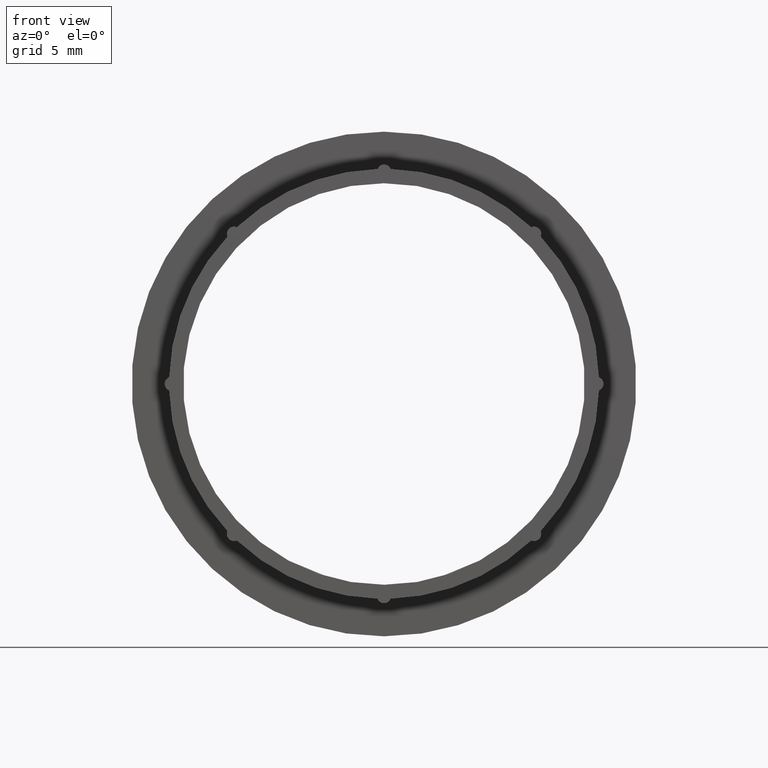
[diagram: clean part render]
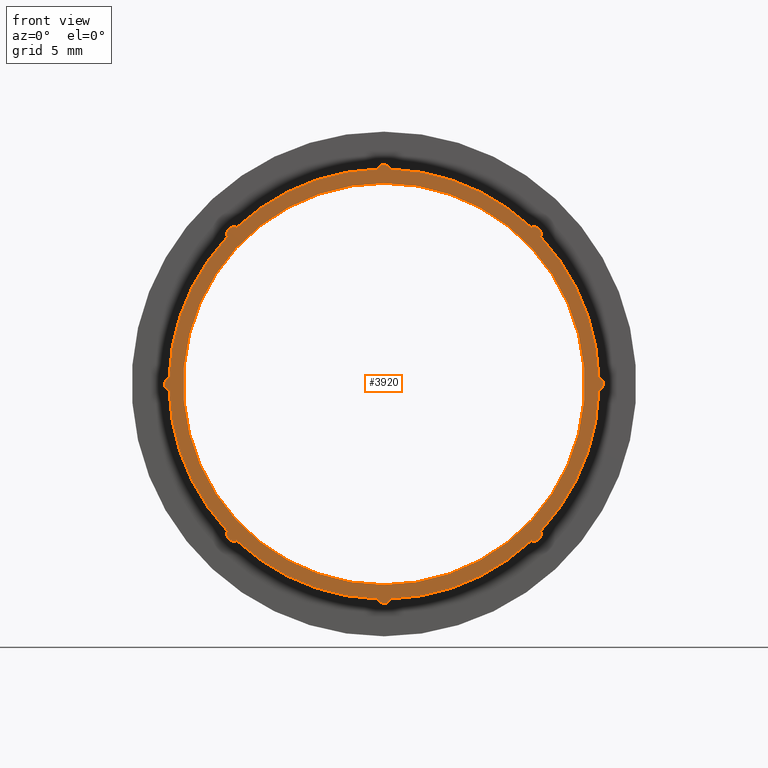
[diagram: same view with one face highlighted and labeled with its STEP entity id]
A machine part, front view. The second image highlights one B-rep face of the part: STEP entity #3920.
In plain terms, the highlighted planar face has unit normal (0, -1, -0).
Its self-contained STEP definition (entity closure, byte-faithful):
#45 = CARTESIAN_POINT ( 'NONE',  ( 1.120551821219828341E-15, -2.168404344971008868E-16, 9.150000000000000355 ) ) ;
#136 = CARTESIAN_POINT ( 'NONE',  ( 6.841258107979906633, 0.000000000000000000, -7.166258107979787795 ) ) ;
#292 = CARTESIAN_POINT ( 'NONE',  ( 0.000000000000000000, -9.653098299161472237E-17, 0.000000000000000000 ) ) ;
#344 = ORIENTED_EDGE ( 'NONE', *, *, #9923, .T. ) ;
#604 = DIRECTION ( 'NONE',  ( 0.000000000000000000, -1.000000000000000000, -0.000000000000000000 ) ) ;
#719 = DIRECTION ( 'NONE',  ( 0.000000000000000000, 0.000000000000000000, -1.000000000000000000 ) ) ;
#755 = AXIS2_PLACEMENT_3D ( 'NONE', #5947, #6041, #7125 ) ;
#785 = DIRECTION ( 'NONE',  ( -0.000000000000000000, -1.000000000000000000, -0.000000000000000000 ) ) ;
#794 = EDGE_CURVE ( 'NONE', #10938, #4193, #3494, .T. ) ;
#848 = ORIENTED_EDGE ( 'NONE', *, *, #8099, .T. ) ;
#910 = CARTESIAN_POINT ( 'NONE',  ( -6.712884921904247015, 1.200763985293244812E-18, -7.139830251852677279 ) ) ;
#977 = CARTESIAN_POINT ( 'NONE',  ( 0.000000000000000000, -9.653098299161472237E-17, 0.000000000000000000 ) ) ;
#1028 = EDGE_CURVE ( 'NONE', #2748, #6283, #10674, .T. ) ;
#1056 = DIRECTION ( 'NONE',  ( 0.7071067811865489050, 0.000000000000000000, -0.7071067811865462405 ) ) ;
#1074 = CARTESIAN_POINT ( 'NONE',  ( 6.712884921904196389, 1.200763985293232679E-18, 7.139830251852722576 ) ) ;
#1206 = DIRECTION ( 'NONE',  ( 0.7071067811865436870, 0.000000000000000000, 0.7071067811865515695 ) ) ;
#1212 = DIRECTION ( 'NONE',  ( 0.000000000000000000, -1.000000000000000000, 0.000000000000000000 ) ) ;
#1265 = CIRCLE ( 'NONE', #8469, 0.3250000000000004552 ) ;
#1313 = VERTEX_POINT ( 'NONE', #13988 ) ;
#1314 = CARTESIAN_POINT ( 'NONE',  ( 9.674999999999998934, 0.000000000000000000, 1.013402458599219377E-13 ) ) ;
#1347 = AXIS2_PLACEMENT_3D ( 'NONE', #13126, #8381, #10646 ) ;
#1358 = VERTEX_POINT ( 'NONE', #3942 ) ;
#1437 = CARTESIAN_POINT ( 'NONE',  ( 9.800000000000000711, -1.566857087443577923E-16, 0.000000000000000000 ) ) ;
#1508 = AXIS2_PLACEMENT_3D ( 'NONE', #5091, #9480, #3857 ) ;
#1563 = DIRECTION ( 'NONE',  ( 0.7071067811865436870, 0.000000000000000000, 0.7071067811865515695 ) ) ;
#1607 = DIRECTION ( 'NONE',  ( 0.000000000000000000, -1.000000000000000000, 0.000000000000000000 ) ) ;
#2027 = VERTEX_POINT ( 'NONE', #910 ) ;
#2107 = CIRCLE ( 'NONE', #12465, 0.3250000000000006217 ) ;
#2127 = CARTESIAN_POINT ( 'NONE',  ( 9.795348837209301607, 1.200763985293232679E-18, 0.3018959380025138528 ) ) ;
#2141 = CARTESIAN_POINT ( 'NONE',  ( 0.000000000000000000, -2.168404344971008868E-16, 0.000000000000000000 ) ) ;
#2334 = CARTESIAN_POINT ( 'NONE',  ( 0.000000000000000000, 0.000000000000000000, 9.674999999999998934 ) ) ;
#2455 = EDGE_CURVE ( 'NONE', #7748, #2027, #9050, .T. ) ;
#2465 = ORIENTED_EDGE ( 'NONE', *, *, #5186, .T. ) ;
#2539 = PLANE ( 'NONE',  #13570 ) ;
#2623 = CIRCLE ( 'NONE', #755, 0.3249999999999998446 ) ;
#2703 = ORIENTED_EDGE ( 'NONE', *, *, #9406, .T. ) ;
#2748 = VERTEX_POINT ( 'NONE', #7291 ) ;
#2761 = DIRECTION ( 'NONE',  ( -0.000000000000000000, -1.000000000000000000, -0.000000000000000000 ) ) ;
#2762 = CIRCLE ( 'NONE', #14464, 0.3250000000000006217 ) ;
#2763 = VERTEX_POINT ( 'NONE', #3125 ) ;
#3009 = DIRECTION ( 'NONE',  ( 0.000000000000000000, 0.000000000000000000, -1.000000000000000000 ) ) ;
#3080 = CARTESIAN_POINT ( 'NONE',  ( 0.000000000000000000, -9.653098299161472237E-17, 0.000000000000000000 ) ) ;
#3083 = DIRECTION ( 'NONE',  ( 0.000000000000000000, -1.000000000000000000, 0.000000000000000000 ) ) ;
#3093 = DIRECTION ( 'NONE',  ( 0.000000000000000000, 0.000000000000000000, -1.000000000000000000 ) ) ;
#3099 = EDGE_CURVE ( 'NONE', #6283, #7748, #11782, .T. ) ;
#3114 = EDGE_LOOP ( 'NONE', ( #8393, #7671, #12529, #4144, #5142, #8023, #7300, #4007, #10759, #4749, #14084, #13167, #2465, #4907, #2703, #848, #10095, #344, #9466 ) ) ;
#3125 = CARTESIAN_POINT ( 'NONE',  ( 0.000000000000000000, 0.000000000000000000, -10.00000000000000000 ) ) ;
#3175 = EDGE_CURVE ( 'NONE', #8117, #2748, #7226, .T. ) ;
#3450 = CIRCLE ( 'NONE', #4026, 0.3250000000000006217 ) ;
#3476 = DIRECTION ( 'NONE',  ( -0.000000000000000000, -1.000000000000000000, 0.000000000000000000 ) ) ;
#3481 = CIRCLE ( 'NONE', #10955, 9.800000000000000711 ) ;
#3492 = DIRECTION ( 'NONE',  ( 0.000000000000000000, 0.000000000000000000, -1.000000000000000000 ) ) ;
#3494 = CIRCLE ( 'NONE', #14482, 0.3250000000000006217 ) ;
#3526 = EDGE_LOOP ( 'NONE', ( #10716, #6589 ) ) ;
#3666 = DIRECTION ( 'NONE',  ( 0.000000000000000000, 0.000000000000000000, -1.000000000000000000 ) ) ;
#3835 = CARTESIAN_POINT ( 'NONE',  ( 9.795348837209306936, 1.200763985293232679E-18, -0.3018959380023086836 ) ) ;
#3857 = DIRECTION ( 'NONE',  ( 0.000000000000000000, 0.000000000000000000, -1.000000000000000000 ) ) ;
#3920 = ADVANCED_FACE ( 'NONE', ( #9666, #10359 ), #2539, .T. ) ;
#3939 = CARTESIAN_POINT ( 'NONE',  ( -9.795348837209306936, 1.200763985293232679E-18, 0.3018959380023771288 ) ) ;
#3942 = CARTESIAN_POINT ( 'NONE',  ( 7.139830251852558263, 1.200763985293232679E-18, 6.712884921904372248 ) ) ;
#4007 = ORIENTED_EDGE ( 'NONE', *, *, #5340, .T. ) ;
#4026 = AXIS2_PLACEMENT_3D ( 'NONE', #9351, #1607, #11581 ) ;
#4144 = ORIENTED_EDGE ( 'NONE', *, *, #3175, .T. ) ;
#4193 = VERTEX_POINT ( 'NONE', #5620 ) ;
#4563 = DIRECTION ( 'NONE',  ( -1.000000000000000000, 0.000000000000000000, -1.047444401652937956E-14 ) ) ;
#4581 = AXIS2_PLACEMENT_3D ( 'NONE', #3080, #10918, #719 ) ;
#4749 = ORIENTED_EDGE ( 'NONE', *, *, #10383, .T. ) ;
#4861 = CARTESIAN_POINT ( 'NONE',  ( -6.712884921904283431, 0.000000000000000000, 7.139830251852645304 ) ) ;
#4895 = DIRECTION ( 'NONE',  ( -0.000000000000000000, -1.000000000000000000, -0.000000000000000000 ) ) ;
#4907 = ORIENTED_EDGE ( 'NONE', *, *, #8705, .T. ) ;
#4963 = VERTEX_POINT ( 'NONE', #14460 ) ;
#5091 = CARTESIAN_POINT ( 'NONE',  ( 0.000000000000000000, -2.168404344971008868E-16, 0.000000000000000000 ) ) ;
#5142 = ORIENTED_EDGE ( 'NONE', *, *, #1028, .T. ) ;
#5186 = EDGE_CURVE ( 'NONE', #9726, #12229, #1265, .T. ) ;
#5340 = EDGE_CURVE ( 'NONE', #2027, #14127, #7367, .T. ) ;
#5433 = CARTESIAN_POINT ( 'NONE',  ( 0.000000000000000000, -9.653098299161472237E-17, 0.000000000000000000 ) ) ;
#5610 = CARTESIAN_POINT ( 'NONE',  ( 6.841258107979906633, 0.000000000000000000, -6.841258107979787617 ) ) ;
#5620 = CARTESIAN_POINT ( 'NONE',  ( -0.3018959380024314743, -9.653098299161472237E-17, 9.795348837209303383 ) ) ;
#5780 = DIRECTION ( 'NONE',  ( -0.000000000000000000, -1.000000000000000000, -0.000000000000000000 ) ) ;
#5801 = DIRECTION ( 'NONE',  ( -0.7071067811865542341, 0.000000000000000000, 0.7071067811865409114 ) ) ;
#5826 = DIRECTION ( 'NONE',  ( 0.000000000000000000, -1.000000000000000000, -0.000000000000000000 ) ) ;
#5840 = EDGE_CURVE ( 'NONE', #9444, #4963, #6316, .T. ) ;
#5912 = CIRCLE ( 'NONE', #8038, 9.800000000000000711 ) ;
#5947 = CARTESIAN_POINT ( 'NONE',  ( 6.841258107979763636, 0.000000000000000000, 6.841258107979929726 ) ) ;
#6000 = AXIS2_PLACEMENT_3D ( 'NONE', #292, #11509, #6913 ) ;
#6041 = DIRECTION ( 'NONE',  ( 0.000000000000000000, -1.000000000000000000, 0.000000000000000000 ) ) ;
#6061 = CARTESIAN_POINT ( 'NONE',  ( 0.3018959380024112682, 1.200763985293232679E-18, -9.795348837209303383 ) ) ;
#6101 = AXIS2_PLACEMENT_3D ( 'NONE', #2141, #12018, #3093 ) ;
#6197 = CARTESIAN_POINT ( 'NONE',  ( 6.841258107979906633, 0.000000000000000000, -6.841258107979787617 ) ) ;
#6257 = CIRCLE ( 'NONE', #4581, 9.800000000000000711 ) ;
#6283 = VERTEX_POINT ( 'NONE', #10104 ) ;
#6295 = DIRECTION ( 'NONE',  ( -0.7071067811865542341, 0.000000000000000000, 0.7071067811865409114 ) ) ;
#6316 = CIRCLE ( 'NONE', #7269, 0.3250000000000003997 ) ;
#6396 = CIRCLE ( 'NONE', #6101, 9.150000000000000355 ) ;
#6576 = DIRECTION ( 'NONE',  ( 0.000000000000000000, 0.000000000000000000, -1.000000000000000000 ) ) ;
#6585 = CARTESIAN_POINT ( 'NONE',  ( -6.841258107979859560, 0.000000000000000000, 6.841258107979835579 ) ) ;
#6589 = ORIENTED_EDGE ( 'NONE', *, *, #11335, .F. ) ;
#6682 = AXIS2_PLACEMENT_3D ( 'NONE', #11273, #3476, #1206 ) ;
#6913 = DIRECTION ( 'NONE',  ( 0.000000000000000000, 0.000000000000000000, -1.000000000000000000 ) ) ;
#7051 = EDGE_CURVE ( 'NONE', #1358, #11943, #2623, .T. ) ;
#7125 = DIRECTION ( 'NONE',  ( -0.7071067811865394681, 0.000000000000000000, -0.7071067811865555663 ) ) ;
#7226 = CIRCLE ( 'NONE', #1347, 0.3250000000000006217 ) ;
#7269 = AXIS2_PLACEMENT_3D ( 'NONE', #6585, #3083, #1056 ) ;
#7291 = CARTESIAN_POINT ( 'NONE',  ( -9.795348837209301607, 1.200763985293232679E-18, -0.3018959380024454631 ) ) ;
#7300 = ORIENTED_EDGE ( 'NONE', *, *, #2455, .T. ) ;
#7367 = CIRCLE ( 'NONE', #12059, 9.800000000000000711 ) ;
#7671 = ORIENTED_EDGE ( 'NONE', *, *, #5840, .T. ) ;
#7748 = VERTEX_POINT ( 'NONE', #8207 ) ;
#8023 = ORIENTED_EDGE ( 'NONE', *, *, #3099, .T. ) ;
#8038 = AXIS2_PLACEMENT_3D ( 'NONE', #11746, #10504, #12782 ) ;
#8099 = EDGE_CURVE ( 'NONE', #8412, #1358, #12273, .T. ) ;
#8117 = VERTEX_POINT ( 'NONE', #3939 ) ;
#8207 = CARTESIAN_POINT ( 'NONE',  ( -6.841258107979810710, 0.000000000000000000, -7.166258107979882830 ) ) ;
#8381 = DIRECTION ( 'NONE',  ( -0.000000000000000000, -1.000000000000000000, 0.000000000000000000 ) ) ;
#8393 = ORIENTED_EDGE ( 'NONE', *, *, #10951, .T. ) ;
#8412 = VERTEX_POINT ( 'NONE', #2127 ) ;
#8469 = AXIS2_PLACEMENT_3D ( 'NONE', #6197, #604, #6295 ) ;
#8596 = EDGE_CURVE ( 'NONE', #14127, #2763, #2107, .T. ) ;
#8705 = EDGE_CURVE ( 'NONE', #12229, #10397, #3481, .T. ) ;
#8777 = AXIS2_PLACEMENT_3D ( 'NONE', #9522, #2761, #10741 ) ;
#8941 = CARTESIAN_POINT ( 'NONE',  ( 0.000000000000000000, 0.000000000000000000, -9.674999999999998934 ) ) ;
#8983 = DIRECTION ( 'NONE',  ( 0.000000000000000000, 0.000000000000000000, 1.000000000000000000 ) ) ;
#9050 = CIRCLE ( 'NONE', #6682, 0.3250000000000003997 ) ;
#9061 = EDGE_CURVE ( 'NONE', #10177, #9726, #9241, .T. ) ;
#9241 = CIRCLE ( 'NONE', #11150, 0.3250000000000004552 ) ;
#9319 = DIRECTION ( 'NONE',  ( -0.000000000000000000, -1.000000000000000000, 0.000000000000000000 ) ) ;
#9351 = CARTESIAN_POINT ( 'NONE',  ( 0.000000000000000000, 0.000000000000000000, -9.674999999999998934 ) ) ;
#9366 = CARTESIAN_POINT ( 'NONE',  ( 0.000000000000000000, -9.653098299161472237E-17, 0.000000000000000000 ) ) ;
#9406 = EDGE_CURVE ( 'NONE', #10397, #8412, #2762, .T. ) ;
#9444 = VERTEX_POINT ( 'NONE', #4861 ) ;
#9466 = ORIENTED_EDGE ( 'NONE', *, *, #794, .T. ) ;
#9480 = DIRECTION ( 'NONE',  ( -0.000000000000000000, -1.000000000000000000, -0.000000000000000000 ) ) ;
#9522 = CARTESIAN_POINT ( 'NONE',  ( 0.000000000000000000, -9.653098299161472237E-17, 0.000000000000000000 ) ) ;
#9666 = FACE_OUTER_BOUND ( 'NONE', #3114, .T. ) ;
#9726 = VERTEX_POINT ( 'NONE', #136 ) ;
#9871 = AXIS2_PLACEMENT_3D ( 'NONE', #10399, #9319, #1563 ) ;
#9923 = EDGE_CURVE ( 'NONE', #11943, #10938, #5912, .T. ) ;
#9937 = CIRCLE ( 'NONE', #1508, 9.150000000000000355 ) ;
#10095 = ORIENTED_EDGE ( 'NONE', *, *, #7051, .T. ) ;
#10104 = CARTESIAN_POINT ( 'NONE',  ( -7.139830251852605336, 1.200763985293232679E-18, -6.712884921904320734 ) ) ;
#10177 = VERTEX_POINT ( 'NONE', #10248 ) ;
#10198 = DIRECTION ( 'NONE',  ( 0.000000000000000000, -1.000000000000000000, 0.000000000000000000 ) ) ;
#10248 = CARTESIAN_POINT ( 'NONE',  ( 6.712884921904346491, 1.200763985293244812E-18, -7.139830251852584020 ) ) ;
#10359 = FACE_BOUND ( 'NONE', #3526, .T. ) ;
#10374 = CARTESIAN_POINT ( 'NONE',  ( 0.000000000000000000, -9.653098299161472237E-17, 0.000000000000000000 ) ) ;
#10383 = EDGE_CURVE ( 'NONE', #2763, #14508, #3450, .T. ) ;
#10397 = VERTEX_POINT ( 'NONE', #3835 ) ;
#10399 = CARTESIAN_POINT ( 'NONE',  ( -6.841258107979810710, 0.000000000000000000, -6.841258107979882652 ) ) ;
#10504 = DIRECTION ( 'NONE',  ( -0.000000000000000000, -1.000000000000000000, -0.000000000000000000 ) ) ;
#10646 = DIRECTION ( 'NONE',  ( 1.000000000000000000, 0.000000000000000000, 3.491481338843133355E-15 ) ) ;
#10674 = CIRCLE ( 'NONE', #6000, 9.800000000000000711 ) ;
#10716 = ORIENTED_EDGE ( 'NONE', *, *, #13453, .F. ) ;
#10741 = DIRECTION ( 'NONE',  ( 0.000000000000000000, 0.000000000000000000, -1.000000000000000000 ) ) ;
#10759 = ORIENTED_EDGE ( 'NONE', *, *, #8596, .T. ) ;
#10918 = DIRECTION ( 'NONE',  ( -0.000000000000000000, -1.000000000000000000, -0.000000000000000000 ) ) ;
#10938 = VERTEX_POINT ( 'NONE', #13151 ) ;
#10951 = EDGE_CURVE ( 'NONE', #4193, #9444, #6257, .T. ) ;
#10955 = AXIS2_PLACEMENT_3D ( 'NONE', #9366, #4895, #13878 ) ;
#11063 = VERTEX_POINT ( 'NONE', #45 ) ;
#11150 = AXIS2_PLACEMENT_3D ( 'NONE', #5610, #13667, #5801 ) ;
#11211 = DIRECTION ( 'NONE',  ( 0.000000000000000000, -1.000000000000000000, 0.000000000000000000 ) ) ;
#11273 = CARTESIAN_POINT ( 'NONE',  ( -6.841258107979810710, 0.000000000000000000, -6.841258107979882652 ) ) ;
#11335 = EDGE_CURVE ( 'NONE', #11063, #1313, #9937, .T. ) ;
#11509 = DIRECTION ( 'NONE',  ( -0.000000000000000000, -1.000000000000000000, -0.000000000000000000 ) ) ;
#11581 = DIRECTION ( 'NONE',  ( 0.000000000000000000, 0.000000000000000000, 1.000000000000000000 ) ) ;
#11746 = CARTESIAN_POINT ( 'NONE',  ( 0.000000000000000000, -9.653098299161472237E-17, 0.000000000000000000 ) ) ;
#11782 = CIRCLE ( 'NONE', #9871, 0.3250000000000003997 ) ;
#11908 = CARTESIAN_POINT ( 'NONE',  ( 7.139830251852699483, 1.200763985293232679E-18, -6.712884921904222146 ) ) ;
#11943 = VERTEX_POINT ( 'NONE', #1074 ) ;
#12018 = DIRECTION ( 'NONE',  ( -0.000000000000000000, -1.000000000000000000, -0.000000000000000000 ) ) ;
#12059 = AXIS2_PLACEMENT_3D ( 'NONE', #977, #785, #3009 ) ;
#12188 = CIRCLE ( 'NONE', #12688, 9.800000000000000711 ) ;
#12205 = CIRCLE ( 'NONE', #13266, 9.800000000000000711 ) ;
#12229 = VERTEX_POINT ( 'NONE', #11908 ) ;
#12273 = CIRCLE ( 'NONE', #8777, 9.800000000000000711 ) ;
#12465 = AXIS2_PLACEMENT_3D ( 'NONE', #8941, #11211, #8983 ) ;
#12529 = ORIENTED_EDGE ( 'NONE', *, *, #12685, .T. ) ;
#12685 = EDGE_CURVE ( 'NONE', #4963, #8117, #12205, .T. ) ;
#12688 = AXIS2_PLACEMENT_3D ( 'NONE', #10374, #5780, #13646 ) ;
#12782 = DIRECTION ( 'NONE',  ( 0.000000000000000000, 0.000000000000000000, -1.000000000000000000 ) ) ;
#12924 = CARTESIAN_POINT ( 'NONE',  ( -0.3018959380024112682, 1.200763985293232679E-18, -9.795348837209303383 ) ) ;
#13126 = CARTESIAN_POINT ( 'NONE',  ( -9.674999999999998934, 0.000000000000000000, -3.378008195330731679E-14 ) ) ;
#13151 = CARTESIAN_POINT ( 'NONE',  ( 0.3018959380024315298, 0.000000000000000000, 9.795348837209305159 ) ) ;
#13167 = ORIENTED_EDGE ( 'NONE', *, *, #9061, .T. ) ;
#13266 = AXIS2_PLACEMENT_3D ( 'NONE', #5433, #13298, #6576 ) ;
#13298 = DIRECTION ( 'NONE',  ( -0.000000000000000000, -1.000000000000000000, -0.000000000000000000 ) ) ;
#13453 = EDGE_CURVE ( 'NONE', #1313, #11063, #6396, .T. ) ;
#13570 = AXIS2_PLACEMENT_3D ( 'NONE', #1437, #5826, #3666 ) ;
#13603 = EDGE_CURVE ( 'NONE', #14508, #10177, #12188, .T. ) ;
#13646 = DIRECTION ( 'NONE',  ( 0.000000000000000000, 0.000000000000000000, -1.000000000000000000 ) ) ;
#13667 = DIRECTION ( 'NONE',  ( 0.000000000000000000, -1.000000000000000000, -0.000000000000000000 ) ) ;
#13878 = DIRECTION ( 'NONE',  ( 0.000000000000000000, 0.000000000000000000, -1.000000000000000000 ) ) ;
#13988 = CARTESIAN_POINT ( 'NONE',  ( 0.000000000000000000, -2.168404344971008868E-16, -9.150000000000000355 ) ) ;
#14084 = ORIENTED_EDGE ( 'NONE', *, *, #13603, .T. ) ;
#14127 = VERTEX_POINT ( 'NONE', #12924 ) ;
#14460 = CARTESIAN_POINT ( 'NONE',  ( -7.139830251852666620, -9.653098299161472237E-17, 6.712884921904258562 ) ) ;
#14464 = AXIS2_PLACEMENT_3D ( 'NONE', #1314, #1212, #4563 ) ;
#14482 = AXIS2_PLACEMENT_3D ( 'NONE', #2334, #10198, #3492 ) ;
#14508 = VERTEX_POINT ( 'NONE', #6061 ) ;